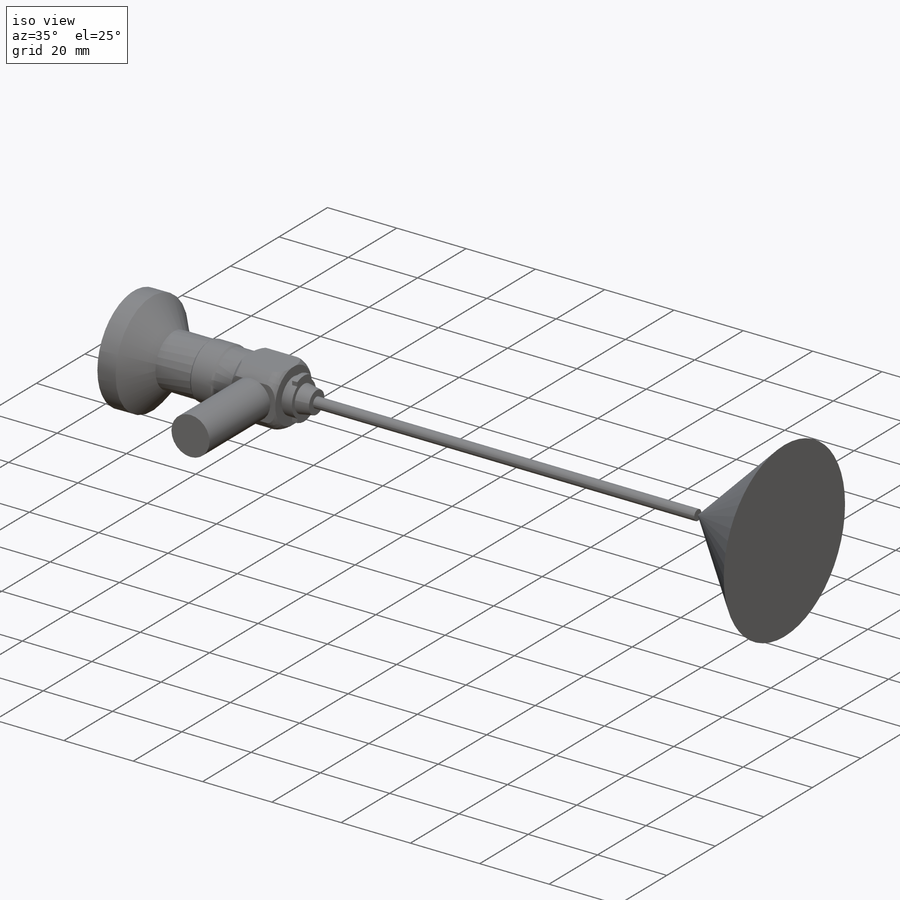
[diagram: iso view]
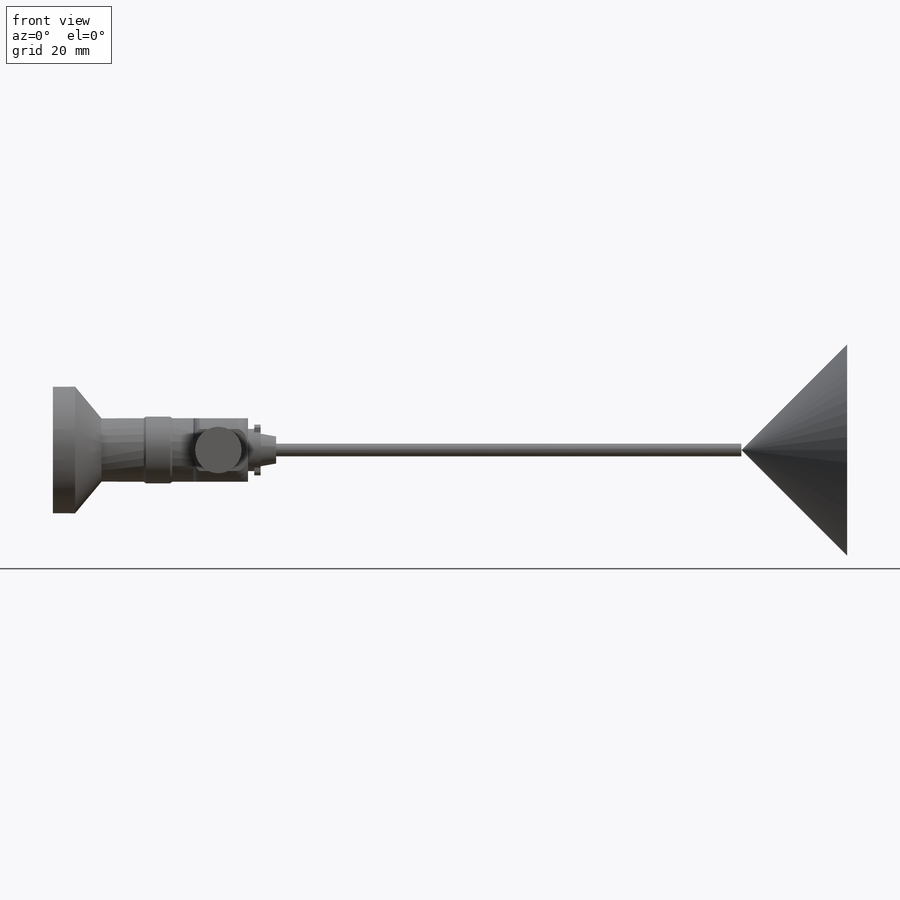
[diagram: front view]
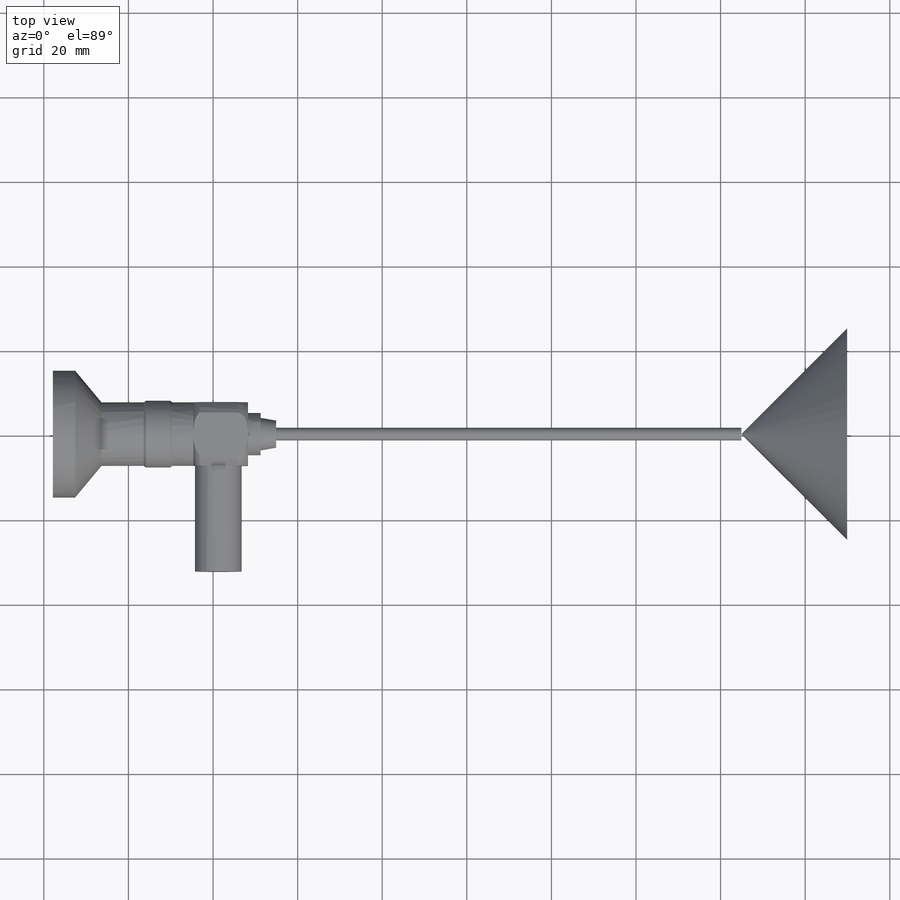
[diagram: top view]
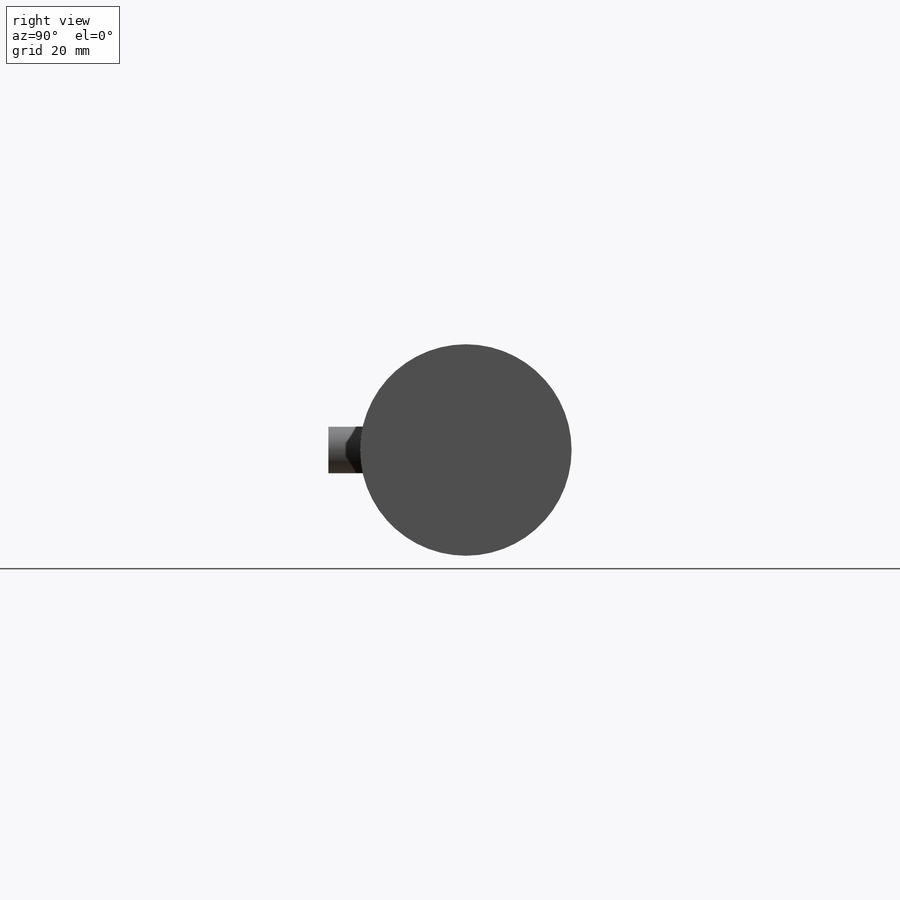
[diagram: right view]
SOLIDWORKS PART (.sldprt)
format: sldprt  version: not decoded by parser v0  size: 348,160 bytes
history: native  units: mm
features: sketch x6, revolve x2, cut_extrude x2, extrude x2, material x1, pattern_circular x1 (+13 scaffold rows collapsed)
feature tree (27):
  scaffold x13  (default folders/planes/origin — collapsed)
  material  "AISI 316 Stainless Steel Sheet (SS)"
  sketch  "Sketch1"  dims[c1.D4=~58.032334mm c1.D12=3.0mm c1.D13=3.0mm c1.D15=~4.625193mm c1.D1=5.25mm c1.D2=15.0mm c1.D3=3.3mm c2.D4=11.5mm c2.D5=7.5mm c2.D6=5.75mm c2.D7=0.5mm c2.D8=0.5mm c2.D9=~0.650854mm c3.D7=7.9mm c3.D8=7.5mm c3.D9=10.0mm c3.D10=5.0mm c3.D11=14.5mm c3.D14=~11.057322mm c3.D12=9.0mm c3.D13=3.15mm c4.D14=3.15mm c4.D15=5.0mm c4.D16=6.0mm c4.D17=1.5mm c4.D18=1.5mm c4.D19=3.85mm c4.D20=3.2mm]
  revolve  "Revolve1"  Angle=360deg
  sketch  "Sketch2"  dims[c1.D1=~12.77064mm c1.D2=~15.335006mm c2.D1=~18.807389mm c2.D2=~13.097021mm c3.D1=~17.165246mm c4.D1=~0.496051deg c5.D1=~6.38984mm c5.D2=~24.878578mm c6.D1=15.0mm c6.D2=~5.42323mm]
  cut_extrude  "Cut-Extrude1"  Depth=15mm
  pattern_circular  "CirPattern1"  Count=2 Angle=90deg
  sketch  "Sketch3"  dims[D1=10.0mm D3=5.5mm D4=~3.951881mm D2=1.0mm]
  cut_extrude  "Cut-Extrude2"  [1 undecoded]
  sketch  "Sketch4"  dims[D1=~11.773554mm]
  extrude  "Boss-Extrude1"  Depth=25mm
  sketch  "Sketch5"  dims[D1=3.0mm]
  extrude  "Boss-Extrude2"  Depth=110mm
  sketch  "Sketch6"  dims[c1.D1=~6.51785mm c2.D1=45.0deg c2.D2=~13.739628mm c3.D2=45.0deg c3.D1=25.0mm]
  revolve  "Revolve2"  Angle=360deg
decode coverage: 12 of 13 modeling features carry decoded parameters
note: ~ marks probable driven/reference dimensions
note: 1 parameter value undecoded
note: suppression state not decoded; provenance and decode notes live in map.json
